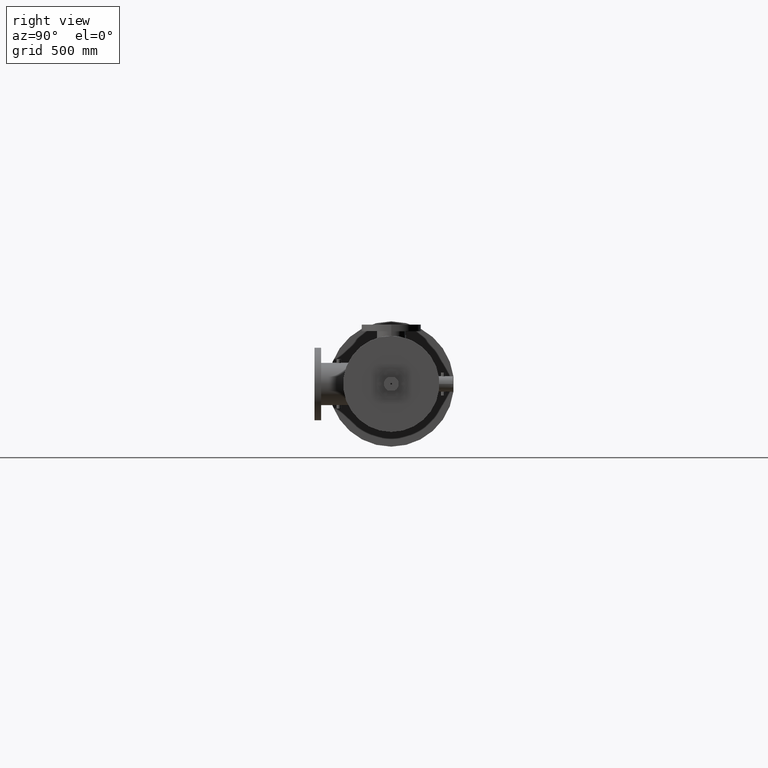
[diagram: clean part render]
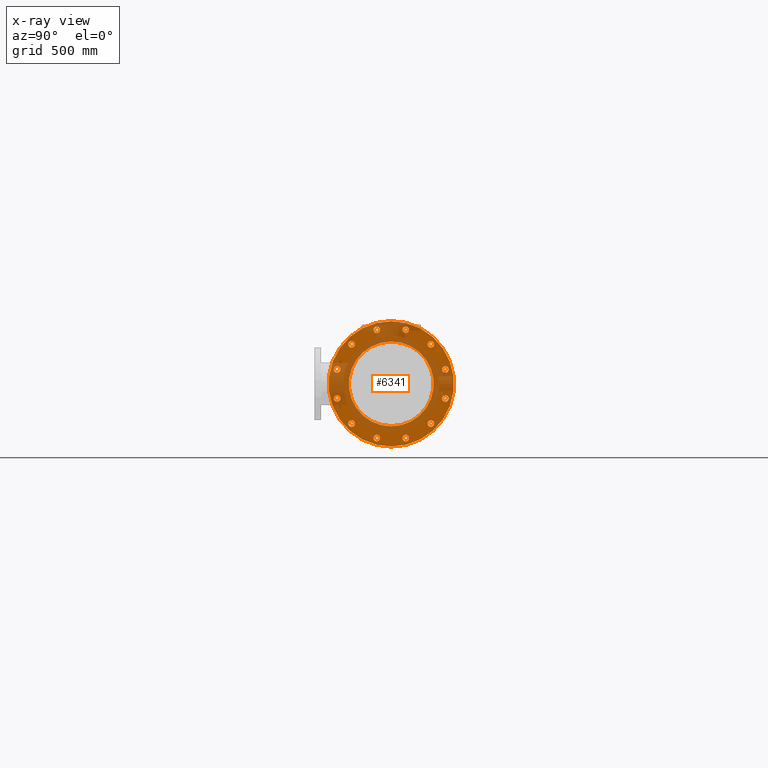
[diagram: x-ray — body ghosted, one internal face saturated and labeled with its STEP entity id]
A machine part, right view, then the same camera in x-ray: the body is ghosted and one INTERNAL B-rep face — a face not visible from any outside direction — is saturated and labeled: STEP entity #6341.
In plain terms, the highlighted planar face has unit normal (-1, 0, -0).
Its self-contained STEP definition (entity closure, byte-faithful):
#33 = ORIENTED_EDGE ( 'NONE', *, *, #13244, .F. ) ;
#213 = AXIS2_PLACEMENT_3D ( 'NONE', #21548, #9734, #19627 ) ;
#311 = CARTESIAN_POINT ( 'NONE',  ( 696.5682505649399445, 176.4509858644662756, 2.199961883371394755 ) ) ;
#470 = DIRECTION ( 'NONE',  ( 1.000000000000000000, 0.0000000000000000000, 0.0000000000000000000 ) ) ;
#472 = ORIENTED_EDGE ( 'NONE', *, *, #14512, .F. ) ;
#505 = ORIENTED_EDGE ( 'NONE', *, *, #6266, .F. ) ;
#508 = FACE_OUTER_BOUND ( 'NONE', #7061, .T. ) ;
#734 = EDGE_LOOP ( 'NONE', ( #7410, #472 ) ) ;
#738 = DIRECTION ( 'NONE',  ( 1.000000000000000000, 0.0000000000000000000, 0.0000000000000000000 ) ) ;
#836 = DIRECTION ( 'NONE',  ( -1.000000000000000000, -0.0000000000000000000, -0.0000000000000000000 ) ) ;
#942 = DIRECTION ( 'NONE',  ( 1.000000000000000000, 0.0000000000000000000, 0.0000000000000000000 ) ) ;
#992 = DIRECTION ( 'NONE',  ( 0.0000000000000000000, 0.0000000000000000000, 1.000000000000000000 ) ) ;
#1007 = CARTESIAN_POINT ( 'NONE',  ( 696.5682505649399445, 184.1613553879231517, 0.0000000000000000000 ) ) ;
#1204 = DIRECTION ( 'NONE',  ( 1.000000000000000000, 0.0000000000000000000, 0.0000000000000000000 ) ) ;
#1308 = CARTESIAN_POINT ( 'NONE',  ( 696.5682505649399445, 177.6509477478376766, 6.010407640085641212 ) ) ;
#1346 = DIRECTION ( 'NONE',  ( 0.0000000000000000000, 0.0000000000000000000, 1.000000000000000000 ) ) ;
#1443 = DIRECTION ( 'NONE',  ( 0.0000000000000000000, 0.0000000000000000000, 1.000000000000000000 ) ) ;
#1463 = DIRECTION ( 'NONE',  ( 1.000000000000000000, 0.0000000000000000000, 0.0000000000000000000 ) ) ;
#1491 = CIRCLE ( 'NONE', #5765, 0.5000000000000405231 ) ;
#1540 = CIRCLE ( 'NONE', #22513, 0.5000000000000279776 ) ;
#1635 = CARTESIAN_POINT ( 'NONE',  ( 696.5682505649399445, 181.9613935045519497, 8.210369523457091034 ) ) ;
#1738 = FACE_BOUND ( 'NONE', #13564, .T. ) ;
#1821 = DIRECTION ( 'NONE',  ( 0.0000000000000000000, 0.0000000000000000000, 1.000000000000000000 ) ) ;
#1966 = CARTESIAN_POINT ( 'NONE',  ( 696.5682505649399445, 178.6509477478377050, 6.010407640085641212 ) ) ;
#1974 = DIRECTION ( 'NONE',  ( 0.0000000000000000000, 0.0000000000000000000, 1.000000000000000000 ) ) ;
#2214 = ORIENTED_EDGE ( 'NONE', *, *, #25300, .F. ) ;
#2266 = CARTESIAN_POINT ( 'NONE',  ( 696.5682505649399445, 190.1717630280090532, 6.010407640085714043 ) ) ;
#2303 = ORIENTED_EDGE ( 'NONE', *, *, #15177, .F. ) ;
#2340 = FACE_BOUND ( 'NONE', #19207, .T. ) ;
#2352 = CIRCLE ( 'NONE', #11584, 0.4999999999999602540 ) ;
#2353 = AXIS2_PLACEMENT_3D ( 'NONE', #10586, #20495, #20587 ) ;
#2435 = DIRECTION ( 'NONE',  ( 0.0000000000000000000, 0.0000000000000000000, 1.000000000000000000 ) ) ;
#2560 = DIRECTION ( 'NONE',  ( 0.0000000000000000000, 0.0000000000000000000, 1.000000000000000000 ) ) ;
#2564 = CARTESIAN_POINT ( 'NONE',  ( 696.5682505649399445, 186.3613172712948938, -8.210369523457091034 ) ) ;
#2644 = DIRECTION ( 'NONE',  ( 0.0000000000000000000, 0.0000000000000000000, 1.000000000000000000 ) ) ;
#2651 = DIRECTION ( 'NONE',  ( 0.0000000000000000000, 0.0000000000000000000, 1.000000000000000000 ) ) ;
#2673 = ORIENTED_EDGE ( 'NONE', *, *, #12263, .F. ) ;
#2698 = VERTEX_POINT ( 'NONE', #4610 ) ;
#2740 = CARTESIAN_POINT ( 'NONE',  ( 696.5682505649399445, 184.1613553879234360, 0.0000000000000000000 ) ) ;
#2849 = AXIS2_PLACEMENT_3D ( 'NONE', #13616, #23494, #1974 ) ;
#2883 = VERTEX_POINT ( 'NONE', #11340 ) ;
#2922 = DIRECTION ( 'NONE',  ( 0.0000000000000000000, 0.0000000000000000000, 1.000000000000000000 ) ) ;
#2961 = CARTESIAN_POINT ( 'NONE',  ( 696.5682505649399445, 175.9509858644662472, 2.199961883371394755 ) ) ;
#3220 = DIRECTION ( 'NONE',  ( 0.0000000000000000000, 0.0000000000000000000, 1.000000000000000000 ) ) ;
#3556 = VERTEX_POINT ( 'NONE', #14972 ) ;
#3639 = EDGE_CURVE ( 'NONE', #15267, #20823, #14744, .T. ) ;
#3728 = CARTESIAN_POINT ( 'NONE',  ( 696.5682505649399445, 190.6717630280090816, 6.010407640085714043 ) ) ;
#3731 = ORIENTED_EDGE ( 'NONE', *, *, #12337, .F. ) ;
#3939 = DIRECTION ( 'NONE',  ( 1.000000000000000000, 0.0000000000000000000, 0.0000000000000000000 ) ) ;
#3946 = ORIENTED_EDGE ( 'NONE', *, *, #23875, .F. ) ;
#4017 = DIRECTION ( 'NONE',  ( 1.000000000000000000, 0.0000000000000000000, 0.0000000000000000000 ) ) ;
#4174 = CIRCLE ( 'NONE', #14874, 0.5000000000000405231 ) ;
#4270 = CARTESIAN_POINT ( 'NONE',  ( 696.5682505649399445, 189.6717630280093090, -6.010407640085627889 ) ) ;
#4293 = VERTEX_POINT ( 'NONE', #5872 ) ;
#4318 = CARTESIAN_POINT ( 'NONE',  ( 696.5682505649399445, 175.4509858644663041, -2.199961883371517324 ) ) ;
#4436 = CARTESIAN_POINT ( 'NONE',  ( 696.5682505649399445, 0.0000000000000000000, 0.0000000000000000000 ) ) ;
#4610 = CARTESIAN_POINT ( 'NONE',  ( 696.5682505649399445, 184.1613553879231517, 9.499999999999994671 ) ) ;
#4634 = VERTEX_POINT ( 'NONE', #1308 ) ;
#4665 = EDGE_LOOP ( 'NONE', ( #13132, #3731 ) ) ;
#4869 = ORIENTED_EDGE ( 'NONE', *, *, #15324, .F. ) ;
#4897 = AXIS2_PLACEMENT_3D ( 'NONE', #16563, #16217, #18304 ) ;
#5144 = CARTESIAN_POINT ( 'NONE',  ( 696.5682505649399445, 176.4509858644663325, -2.199961883371517324 ) ) ;
#5363 = EDGE_CURVE ( 'NONE', #20823, #15267, #17362, .T. ) ;
#5411 = CIRCLE ( 'NONE', #9129, 0.5000000000000279776 ) ;
#5413 = EDGE_LOOP ( 'NONE', ( #17814, #12894 ) ) ;
#5548 = DIRECTION ( 'NONE',  ( 0.0000000000000000000, 0.0000000000000000000, 1.000000000000000000 ) ) ;
#5558 = VERTEX_POINT ( 'NONE', #12964 ) ;
#5572 = CIRCLE ( 'NONE', #9019, 6.430000000000004157 ) ;
#5671 = CIRCLE ( 'NONE', #2353, 6.430000000000004157 ) ;
#5765 = AXIS2_PLACEMENT_3D ( 'NONE', #2961, #8703, #12540 ) ;
#5780 = VERTEX_POINT ( 'NONE', #15510 ) ;
#5872 = CARTESIAN_POINT ( 'NONE',  ( 696.5682505649399445, 181.4613935045522055, -8.210369523457089258 ) ) ;
#6029 = AXIS2_PLACEMENT_3D ( 'NONE', #25322, #738, #992 ) ;
#6266 = EDGE_CURVE ( 'NONE', #10632, #15636, #5411, .T. ) ;
#6341 = ADVANCED_FACE ( 'NONE', ( #2340, #14594, #22631, #22013, #17369, #12135, #14888, #11531, #6948, #1738, #23820, #9680, #16742, #508 ), #16080, .F. ) ;
#6418 = ORIENTED_EDGE ( 'NONE', *, *, #11561, .F. ) ;
#6906 = AXIS2_PLACEMENT_3D ( 'NONE', #21711, #8104, #23634 ) ;
#6948 = FACE_BOUND ( 'NONE', #12950, .T. ) ;
#7026 = ORIENTED_EDGE ( 'NONE', *, *, #5363, .F. ) ;
#7061 = EDGE_LOOP ( 'NONE', ( #11717, #24008 ) ) ;
#7109 = VERTEX_POINT ( 'NONE', #9493 ) ;
#7410 = ORIENTED_EDGE ( 'NONE', *, *, #21413, .F. ) ;
#7570 = EDGE_LOOP ( 'NONE', ( #13803, #17994 ) ) ;
#7691 = AXIS2_PLACEMENT_3D ( 'NONE', #24737, #12967, #3220 ) ;
#7820 = CARTESIAN_POINT ( 'NONE',  ( 696.5682505649399445, 178.1509477478377050, 6.010407640085641212 ) ) ;
#7977 = VERTEX_POINT ( 'NONE', #12811 ) ;
#8026 = CARTESIAN_POINT ( 'NONE',  ( 696.5682505649399445, 189.6717630280090248, 6.010407640085714043 ) ) ;
#8104 = DIRECTION ( 'NONE',  ( 1.000000000000000000, 0.0000000000000000000, 0.0000000000000000000 ) ) ;
#8159 = AXIS2_PLACEMENT_3D ( 'NONE', #4436, #18075, #8481 ) ;
#8341 = VERTEX_POINT ( 'NONE', #311 ) ;
#8345 = VERTEX_POINT ( 'NONE', #8026 ) ;
#8419 = EDGE_CURVE ( 'NONE', #18028, #4293, #10514, .T. ) ;
#8434 = CARTESIAN_POINT ( 'NONE',  ( 696.5682505649399445, 192.8717249113805110, 2.199961883371517324 ) ) ;
#8478 = DIRECTION ( 'NONE',  ( 1.000000000000000000, 0.0000000000000000000, 0.0000000000000000000 ) ) ;
#8481 = DIRECTION ( 'NONE',  ( -0.0000000000000000000, 0.0000000000000000000, 1.000000000000000000 ) ) ;
#8703 = DIRECTION ( 'NONE',  ( 1.000000000000000000, 0.0000000000000000000, 0.0000000000000000000 ) ) ;
#8769 = CIRCLE ( 'NONE', #6906, 0.5000000000000279776 ) ;
#8821 = CARTESIAN_POINT ( 'NONE',  ( 696.5682505649399445, 186.3613172712948085, 8.210369523457126562 ) ) ;
#8888 = DIRECTION ( 'NONE',  ( 0.0000000000000000000, 0.0000000000000000000, 1.000000000000000000 ) ) ;
#8896 = CARTESIAN_POINT ( 'NONE',  ( 696.5682505649399445, 190.1717630280091669, -6.010407640085627889 ) ) ;
#9019 = AXIS2_PLACEMENT_3D ( 'NONE', #2740, #10676, #12479 ) ;
#9129 = AXIS2_PLACEMENT_3D ( 'NONE', #14116, #10250, #2651 ) ;
#9146 = CARTESIAN_POINT ( 'NONE',  ( 696.5682505649399445, 186.8613172712949222, -8.210369523457091034 ) ) ;
#9287 = EDGE_CURVE ( 'NONE', #7977, #3556, #5572, .T. ) ;
#9472 = DIRECTION ( 'NONE',  ( 1.000000000000000000, 0.0000000000000000000, 0.0000000000000000000 ) ) ;
#9493 = CARTESIAN_POINT ( 'NONE',  ( 696.5682505649399445, 175.4509858644662188, 2.199961883371394755 ) ) ;
#9680 = FACE_BOUND ( 'NONE', #4665, .T. ) ;
#9687 = EDGE_CURVE ( 'NONE', #5780, #5558, #13529, .T. ) ;
#9734 = DIRECTION ( 'NONE',  ( 1.000000000000000000, 0.0000000000000000000, 0.0000000000000000000 ) ) ;
#9764 = CIRCLE ( 'NONE', #7691, 0.4999999999998651634 ) ;
#9857 = EDGE_CURVE ( 'NONE', #2698, #13614, #10443, .T. ) ;
#9976 = DIRECTION ( 'NONE',  ( 0.0000000000000000000, 0.0000000000000000000, 1.000000000000000000 ) ) ;
#10197 = ORIENTED_EDGE ( 'NONE', *, *, #9287, .F. ) ;
#10250 = DIRECTION ( 'NONE',  ( 1.000000000000000000, 0.0000000000000000000, 0.0000000000000000000 ) ) ;
#10251 = CIRCLE ( 'NONE', #12364, 0.5000000000000268674 ) ;
#10443 = CIRCLE ( 'NONE', #15088, 9.499999999999994671 ) ;
#10514 = CIRCLE ( 'NONE', #4897, 0.4999999999998498978 ) ;
#10531 = CARTESIAN_POINT ( 'NONE',  ( 696.5682505649399445, 184.1613553879231517, -9.499999999999994671 ) ) ;
#10554 = EDGE_CURVE ( 'NONE', #22252, #8345, #12272, .T. ) ;
#10569 = CARTESIAN_POINT ( 'NONE',  ( 696.5682505649399445, 177.6509477478378471, -6.010407640085714043 ) ) ;
#10586 = CARTESIAN_POINT ( 'NONE',  ( 696.5682505649399445, 184.1613553879234360, 0.0000000000000000000 ) ) ;
#10632 = VERTEX_POINT ( 'NONE', #4318 ) ;
#10676 = DIRECTION ( 'NONE',  ( 1.000000000000000000, 0.0000000000000000000, 0.0000000000000000000 ) ) ;
#10678 = VERTEX_POINT ( 'NONE', #8434 ) ;
#10846 = DIRECTION ( 'NONE',  ( 1.000000000000000000, 0.0000000000000000000, 0.0000000000000000000 ) ) ;
#11127 = DIRECTION ( 'NONE',  ( 0.0000000000000000000, 0.0000000000000000000, 1.000000000000000000 ) ) ;
#11195 = CIRCLE ( 'NONE', #20574, 0.5000000000000279776 ) ;
#11228 = CIRCLE ( 'NONE', #14724, 0.4999999999999689693 ) ;
#11272 = CARTESIAN_POINT ( 'NONE',  ( 696.5682505649399445, 182.4613935045519213, -8.210369523457089258 ) ) ;
#11340 = CARTESIAN_POINT ( 'NONE',  ( 696.5682505649399445, 190.6717630280089963, -6.010407640085627889 ) ) ;
#11356 = DIRECTION ( 'NONE',  ( -1.000000000000000000, -0.0000000000000000000, -0.0000000000000000000 ) ) ;
#11435 = ORIENTED_EDGE ( 'NONE', *, *, #11918, .F. ) ;
#11531 = FACE_BOUND ( 'NONE', #25353, .T. ) ;
#11561 = EDGE_CURVE ( 'NONE', #8341, #7109, #1491, .T. ) ;
#11584 = AXIS2_PLACEMENT_3D ( 'NONE', #8821, #942, #2922 ) ;
#11717 = ORIENTED_EDGE ( 'NONE', *, *, #9857, .F. ) ;
#11797 = DIRECTION ( 'NONE',  ( 0.0000000000000000000, 0.0000000000000000000, 1.000000000000000000 ) ) ;
#11918 = EDGE_CURVE ( 'NONE', #10678, #12336, #16806, .T. ) ;
#11958 = DIRECTION ( 'NONE',  ( 1.000000000000000000, 0.0000000000000000000, 0.0000000000000000000 ) ) ;
#12135 = FACE_BOUND ( 'NONE', #16292, .T. ) ;
#12160 = AXIS2_PLACEMENT_3D ( 'NONE', #15805, #11958, #9976 ) ;
#12209 = CARTESIAN_POINT ( 'NONE',  ( 696.5682505649399445, 181.9613935045519497, 8.210369523457091034 ) ) ;
#12263 = EDGE_CURVE ( 'NONE', #12336, #10678, #17876, .T. ) ;
#12272 = CIRCLE ( 'NONE', #12461, 0.5000000000000345279 ) ;
#12336 = VERTEX_POINT ( 'NONE', #23395 ) ;
#12337 = EDGE_CURVE ( 'NONE', #5558, #5780, #16329, .T. ) ;
#12364 = AXIS2_PLACEMENT_3D ( 'NONE', #16877, #1204, #11127 ) ;
#12461 = AXIS2_PLACEMENT_3D ( 'NONE', #2266, #470, #2435 ) ;
#12479 = DIRECTION ( 'NONE',  ( 0.0000000000000000000, 0.0000000000000000000, -1.000000000000000000 ) ) ;
#12540 = DIRECTION ( 'NONE',  ( 0.0000000000000000000, 0.0000000000000000000, 1.000000000000000000 ) ) ;
#12584 = DIRECTION ( 'NONE',  ( 0.0000000000000000000, 0.0000000000000000000, 1.000000000000000000 ) ) ;
#12718 = ORIENTED_EDGE ( 'NONE', *, *, #19445, .F. ) ;
#12811 = CARTESIAN_POINT ( 'NONE',  ( 696.5682505649399445, 184.1613553879234360, -6.430000000000004157 ) ) ;
#12894 = ORIENTED_EDGE ( 'NONE', *, *, #13811, .F. ) ;
#12950 = EDGE_LOOP ( 'NONE', ( #23689, #3946 ) ) ;
#12964 = CARTESIAN_POINT ( 'NONE',  ( 696.5682505649399445, 192.8717249113804826, -2.199961883371375215 ) ) ;
#12967 = DIRECTION ( 'NONE',  ( 1.000000000000000000, 0.0000000000000000000, 0.0000000000000000000 ) ) ;
#13084 = CARTESIAN_POINT ( 'NONE',  ( 696.5682505649399445, 190.1717630280090532, 6.010407640085714043 ) ) ;
#13132 = ORIENTED_EDGE ( 'NONE', *, *, #9687, .F. ) ;
#13174 = DIRECTION ( 'NONE',  ( 1.000000000000000000, 0.0000000000000000000, 0.0000000000000000000 ) ) ;
#13244 = EDGE_CURVE ( 'NONE', #8345, #22252, #16896, .T. ) ;
#13322 = EDGE_CURVE ( 'NONE', #4293, #18028, #18773, .T. ) ;
#13496 = DIRECTION ( 'NONE',  ( 0.0000000000000000000, 0.0000000000000000000, 1.000000000000000000 ) ) ;
#13529 = CIRCLE ( 'NONE', #18392, 0.4999999999999263922 ) ;
#13564 = EDGE_LOOP ( 'NONE', ( #33, #18696 ) ) ;
#13614 = VERTEX_POINT ( 'NONE', #10531 ) ;
#13616 = CARTESIAN_POINT ( 'NONE',  ( 696.5682505649399445, 192.3717249113805110, 2.199961883371517324 ) ) ;
#13663 = CARTESIAN_POINT ( 'NONE',  ( 696.5682505649399445, 181.4613935045520066, 8.210369523457091034 ) ) ;
#13769 = DIRECTION ( 'NONE',  ( 0.0000000000000000000, 0.0000000000000000000, 1.000000000000000000 ) ) ;
#13803 = ORIENTED_EDGE ( 'NONE', *, *, #13322, .F. ) ;
#13811 = EDGE_CURVE ( 'NONE', #17031, #24302, #1540, .T. ) ;
#13906 = AXIS2_PLACEMENT_3D ( 'NONE', #12209, #16227, #18228 ) ;
#13930 = ORIENTED_EDGE ( 'NONE', *, *, #25154, .F. ) ;
#14116 = CARTESIAN_POINT ( 'NONE',  ( 696.5682505649399445, 175.9509858644663041, -2.199961883371517324 ) ) ;
#14130 = EDGE_CURVE ( 'NONE', #13614, #2698, #19050, .T. ) ;
#14201 = DIRECTION ( 'NONE',  ( 0.0000000000000000000, 0.0000000000000000000, 1.000000000000000000 ) ) ;
#14512 = EDGE_CURVE ( 'NONE', #16738, #4634, #22730, .T. ) ;
#14521 = CARTESIAN_POINT ( 'NONE',  ( 696.5682505649399445, 186.8613172712947801, 8.210369523457126562 ) ) ;
#14594 = FACE_BOUND ( 'NONE', #5413, .T. ) ;
#14724 = AXIS2_PLACEMENT_3D ( 'NONE', #1635, #1463, #15147 ) ;
#14744 = CIRCLE ( 'NONE', #18665, 0.4999999999999646394 ) ;
#14874 = AXIS2_PLACEMENT_3D ( 'NONE', #20498, #24076, #2560 ) ;
#14888 = FACE_BOUND ( 'NONE', #734, .T. ) ;
#14969 = CIRCLE ( 'NONE', #18451, 0.4999999999998651634 ) ;
#14972 = CARTESIAN_POINT ( 'NONE',  ( 696.5682505649399445, 184.1613553879234360, 6.430000000000004157 ) ) ;
#14975 = CARTESIAN_POINT ( 'NONE',  ( 696.5682505649399445, 185.8613172712948653, -8.210369523457091034 ) ) ;
#15088 = AXIS2_PLACEMENT_3D ( 'NONE', #15278, #11356, #13496 ) ;
#15147 = DIRECTION ( 'NONE',  ( 0.0000000000000000000, 0.0000000000000000000, 1.000000000000000000 ) ) ;
#15177 = EDGE_CURVE ( 'NONE', #21616, #18098, #19006, .T. ) ;
#15267 = VERTEX_POINT ( 'NONE', #10569 ) ;
#15278 = CARTESIAN_POINT ( 'NONE',  ( 696.5682505649399445, 184.1613553879231517, 0.0000000000000000000 ) ) ;
#15324 = EDGE_CURVE ( 'NONE', #19177, #2883, #9764, .T. ) ;
#15510 = CARTESIAN_POINT ( 'NONE',  ( 696.5682505649399445, 191.8717249113806531, -2.199961883371375215 ) ) ;
#15636 = VERTEX_POINT ( 'NONE', #5144 ) ;
#15805 = CARTESIAN_POINT ( 'NONE',  ( 696.5682505649399445, 192.3717249113805110, 2.199961883371517324 ) ) ;
#15998 = CARTESIAN_POINT ( 'NONE',  ( 696.5682505649399445, 192.3717249113805678, -2.199961883371375215 ) ) ;
#16080 = PLANE ( 'NONE',  #8159 ) ;
#16212 = AXIS2_PLACEMENT_3D ( 'NONE', #1007, #836, #8888 ) ;
#16217 = DIRECTION ( 'NONE',  ( 1.000000000000000000, 0.0000000000000000000, 0.0000000000000000000 ) ) ;
#16227 = DIRECTION ( 'NONE',  ( 1.000000000000000000, 0.0000000000000000000, 0.0000000000000000000 ) ) ;
#16292 = EDGE_LOOP ( 'NONE', ( #2214, #6418 ) ) ;
#16329 = CIRCLE ( 'NONE', #213, 0.4999999999999263922 ) ;
#16563 = CARTESIAN_POINT ( 'NONE',  ( 696.5682505649399445, 181.9613935045520634, -8.210369523457089258 ) ) ;
#16729 = CIRCLE ( 'NONE', #22945, 0.4999999999999602540 ) ;
#16738 = VERTEX_POINT ( 'NONE', #1966 ) ;
#16742 = FACE_BOUND ( 'NONE', #17220, .T. ) ;
#16806 = CIRCLE ( 'NONE', #2849, 0.5000000000000324185 ) ;
#16877 = CARTESIAN_POINT ( 'NONE',  ( 696.5682505649399445, 178.1509477478377050, 6.010407640085641212 ) ) ;
#16896 = CIRCLE ( 'NONE', #18620, 0.5000000000000345279 ) ;
#17031 = VERTEX_POINT ( 'NONE', #9146 ) ;
#17220 = EDGE_LOOP ( 'NONE', ( #10197, #21061 ) ) ;
#17319 = EDGE_CURVE ( 'NONE', #15636, #10632, #8769, .T. ) ;
#17336 = EDGE_LOOP ( 'NONE', ( #2673, #11435 ) ) ;
#17362 = CIRCLE ( 'NONE', #6029, 0.4999999999999646394 ) ;
#17369 = FACE_BOUND ( 'NONE', #18760, .T. ) ;
#17509 = DIRECTION ( 'NONE',  ( 1.000000000000000000, 0.0000000000000000000, 0.0000000000000000000 ) ) ;
#17807 = EDGE_CURVE ( 'NONE', #24302, #17031, #11195, .T. ) ;
#17814 = ORIENTED_EDGE ( 'NONE', *, *, #17807, .F. ) ;
#17876 = CIRCLE ( 'NONE', #12160, 0.5000000000000324185 ) ;
#17994 = ORIENTED_EDGE ( 'NONE', *, *, #8419, .F. ) ;
#18028 = VERTEX_POINT ( 'NONE', #11272 ) ;
#18075 = DIRECTION ( 'NONE',  ( -1.000000000000000000, 0.0000000000000000000, -0.0000000000000000000 ) ) ;
#18098 = VERTEX_POINT ( 'NONE', #13663 ) ;
#18113 = AXIS2_PLACEMENT_3D ( 'NONE', #24932, #13174, #1443 ) ;
#18228 = DIRECTION ( 'NONE',  ( 0.0000000000000000000, 0.0000000000000000000, 1.000000000000000000 ) ) ;
#18304 = DIRECTION ( 'NONE',  ( 0.0000000000000000000, 0.0000000000000000000, 1.000000000000000000 ) ) ;
#18392 = AXIS2_PLACEMENT_3D ( 'NONE', #15998, #8478, #2644 ) ;
#18451 = AXIS2_PLACEMENT_3D ( 'NONE', #8896, #10846, #1346 ) ;
#18455 = CARTESIAN_POINT ( 'NONE',  ( 696.5682505649399445, 186.3613172712948085, 8.210369523457126562 ) ) ;
#18620 = AXIS2_PLACEMENT_3D ( 'NONE', #13084, #9472, #5548 ) ;
#18665 = AXIS2_PLACEMENT_3D ( 'NONE', #19373, #4017, #13769 ) ;
#18696 = ORIENTED_EDGE ( 'NONE', *, *, #10554, .F. ) ;
#18760 = EDGE_LOOP ( 'NONE', ( #505, #24338 ) ) ;
#18773 = CIRCLE ( 'NONE', #18113, 0.4999999999998498978 ) ;
#19006 = CIRCLE ( 'NONE', #13906, 0.4999999999999689693 ) ;
#19050 = CIRCLE ( 'NONE', #16212, 9.499999999999994671 ) ;
#19177 = VERTEX_POINT ( 'NONE', #4270 ) ;
#19207 = EDGE_LOOP ( 'NONE', ( #4869, #12718 ) ) ;
#19373 = CARTESIAN_POINT ( 'NONE',  ( 696.5682505649399445, 178.1509477478377903, -6.010407640085714043 ) ) ;
#19445 = EDGE_CURVE ( 'NONE', #2883, #19177, #14969, .T. ) ;
#19627 = DIRECTION ( 'NONE',  ( 0.0000000000000000000, 0.0000000000000000000, 1.000000000000000000 ) ) ;
#20262 = DIRECTION ( 'NONE',  ( 1.000000000000000000, 0.0000000000000000000, 0.0000000000000000000 ) ) ;
#20495 = DIRECTION ( 'NONE',  ( 1.000000000000000000, 0.0000000000000000000, 0.0000000000000000000 ) ) ;
#20498 = CARTESIAN_POINT ( 'NONE',  ( 696.5682505649399445, 175.9509858644662472, 2.199961883371394755 ) ) ;
#20574 = AXIS2_PLACEMENT_3D ( 'NONE', #2564, #24263, #14201 ) ;
#20587 = DIRECTION ( 'NONE',  ( 0.0000000000000000000, 0.0000000000000000000, -1.000000000000000000 ) ) ;
#20823 = VERTEX_POINT ( 'NONE', #22517 ) ;
#21061 = ORIENTED_EDGE ( 'NONE', *, *, #21132, .F. ) ;
#21132 = EDGE_CURVE ( 'NONE', #3556, #7977, #5671, .T. ) ;
#21300 = EDGE_CURVE ( 'NONE', #22646, #23038, #16729, .T. ) ;
#21413 = EDGE_CURVE ( 'NONE', #4634, #16738, #10251, .T. ) ;
#21548 = CARTESIAN_POINT ( 'NONE',  ( 696.5682505649399445, 192.3717249113805678, -2.199961883371375215 ) ) ;
#21616 = VERTEX_POINT ( 'NONE', #25264 ) ;
#21711 = CARTESIAN_POINT ( 'NONE',  ( 696.5682505649399445, 175.9509858644663041, -2.199961883371517324 ) ) ;
#22013 = FACE_BOUND ( 'NONE', #23781, .T. ) ;
#22252 = VERTEX_POINT ( 'NONE', #3728 ) ;
#22297 = ORIENTED_EDGE ( 'NONE', *, *, #3639, .F. ) ;
#22513 = AXIS2_PLACEMENT_3D ( 'NONE', #23653, #3939, #11797 ) ;
#22517 = CARTESIAN_POINT ( 'NONE',  ( 696.5682505649399445, 178.6509477478377619, -6.010407640085714043 ) ) ;
#22631 = FACE_BOUND ( 'NONE', #7570, .T. ) ;
#22646 = VERTEX_POINT ( 'NONE', #24692 ) ;
#22730 = CIRCLE ( 'NONE', #24290, 0.5000000000000268674 ) ;
#22945 = AXIS2_PLACEMENT_3D ( 'NONE', #18455, #20262, #12584 ) ;
#23038 = VERTEX_POINT ( 'NONE', #14521 ) ;
#23395 = CARTESIAN_POINT ( 'NONE',  ( 696.5682505649399445, 191.8717249113804826, 2.199961883371517324 ) ) ;
#23494 = DIRECTION ( 'NONE',  ( 1.000000000000000000, 0.0000000000000000000, 0.0000000000000000000 ) ) ;
#23634 = DIRECTION ( 'NONE',  ( 0.0000000000000000000, 0.0000000000000000000, 1.000000000000000000 ) ) ;
#23653 = CARTESIAN_POINT ( 'NONE',  ( 696.5682505649399445, 186.3613172712948938, -8.210369523457091034 ) ) ;
#23689 = ORIENTED_EDGE ( 'NONE', *, *, #21300, .F. ) ;
#23781 = EDGE_LOOP ( 'NONE', ( #22297, #7026 ) ) ;
#23820 = FACE_BOUND ( 'NONE', #17336, .T. ) ;
#23875 = EDGE_CURVE ( 'NONE', #23038, #22646, #2352, .T. ) ;
#24008 = ORIENTED_EDGE ( 'NONE', *, *, #14130, .F. ) ;
#24076 = DIRECTION ( 'NONE',  ( 1.000000000000000000, 0.0000000000000000000, 0.0000000000000000000 ) ) ;
#24263 = DIRECTION ( 'NONE',  ( 1.000000000000000000, 0.0000000000000000000, 0.0000000000000000000 ) ) ;
#24290 = AXIS2_PLACEMENT_3D ( 'NONE', #7820, #17509, #1821 ) ;
#24302 = VERTEX_POINT ( 'NONE', #14975 ) ;
#24338 = ORIENTED_EDGE ( 'NONE', *, *, #17319, .F. ) ;
#24692 = CARTESIAN_POINT ( 'NONE',  ( 696.5682505649399445, 185.8613172712948653, 8.210369523457126562 ) ) ;
#24737 = CARTESIAN_POINT ( 'NONE',  ( 696.5682505649399445, 190.1717630280091669, -6.010407640085627889 ) ) ;
#24932 = CARTESIAN_POINT ( 'NONE',  ( 696.5682505649399445, 181.9613935045520634, -8.210369523457089258 ) ) ;
#25154 = EDGE_CURVE ( 'NONE', #18098, #21616, #11228, .T. ) ;
#25264 = CARTESIAN_POINT ( 'NONE',  ( 696.5682505649399445, 182.4613935045519213, 8.210369523457091034 ) ) ;
#25300 = EDGE_CURVE ( 'NONE', #7109, #8341, #4174, .T. ) ;
#25322 = CARTESIAN_POINT ( 'NONE',  ( 696.5682505649399445, 178.1509477478377903, -6.010407640085714043 ) ) ;
#25353 = EDGE_LOOP ( 'NONE', ( #13930, #2303 ) ) ;